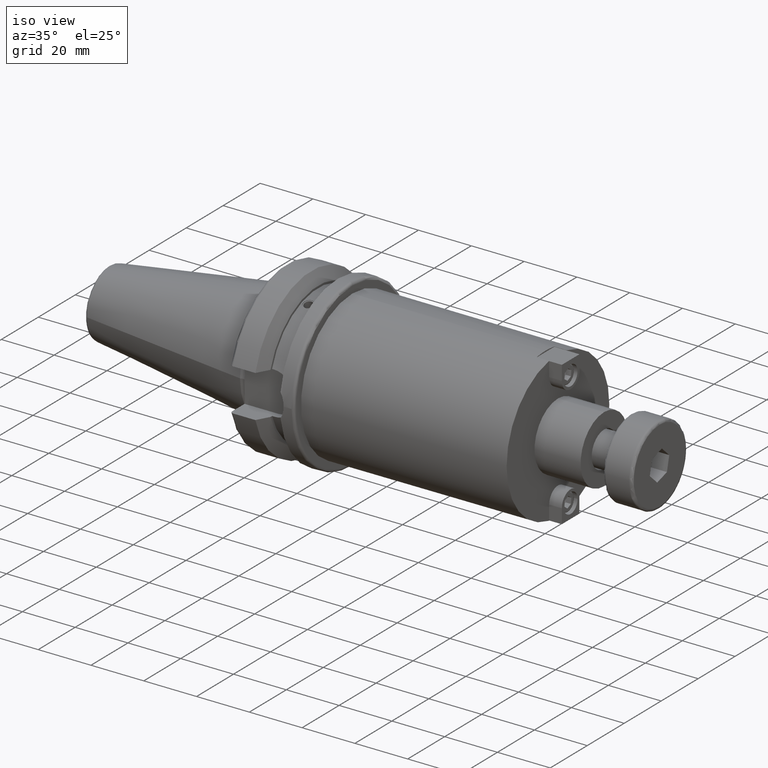
[diagram: clean part render]
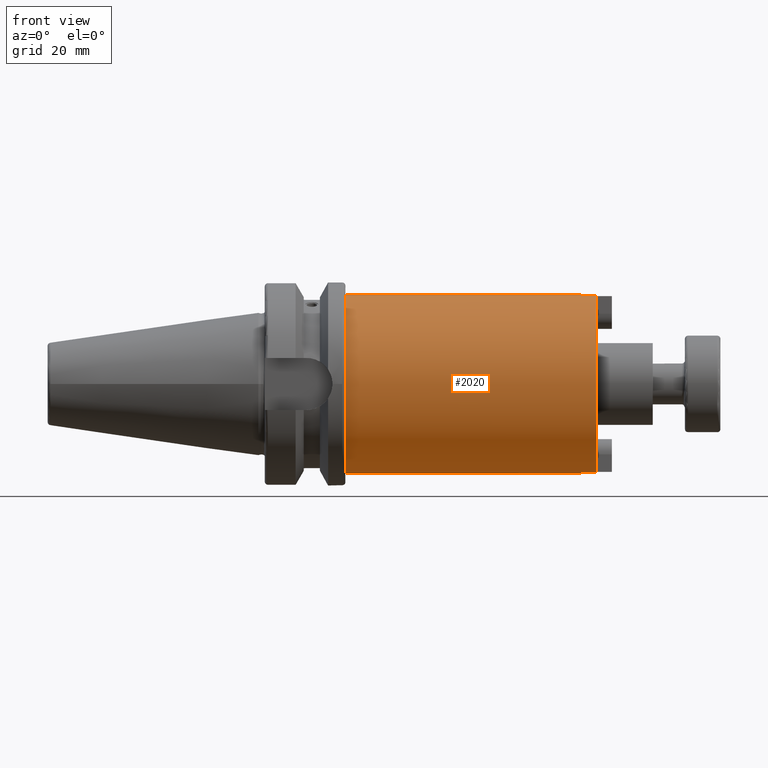
[diagram: tour spotlight — one face highlighted and labeled with its STEP entity id]
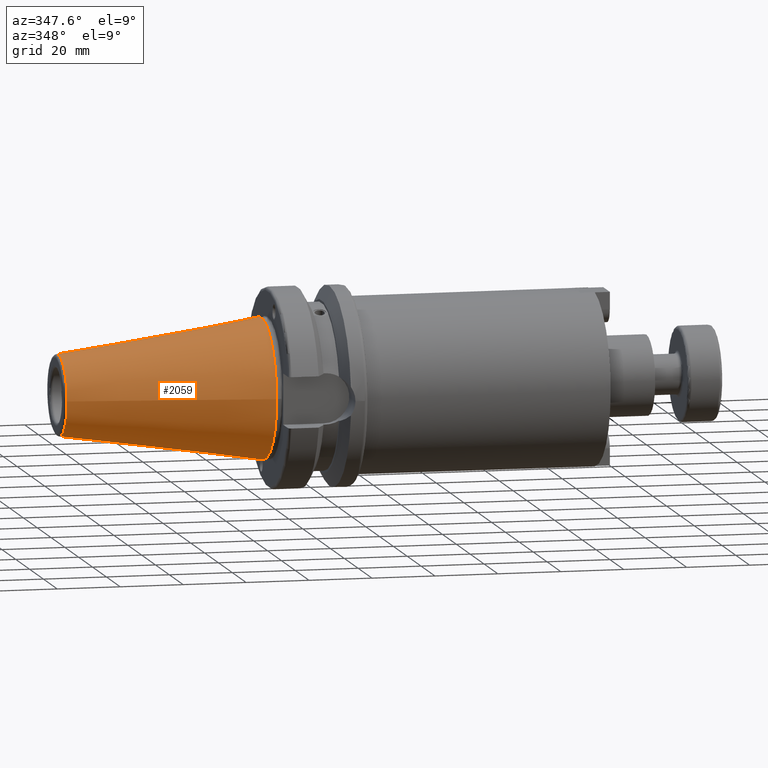
[diagram: tour spotlight — one face highlighted and labeled with its STEP entity id]
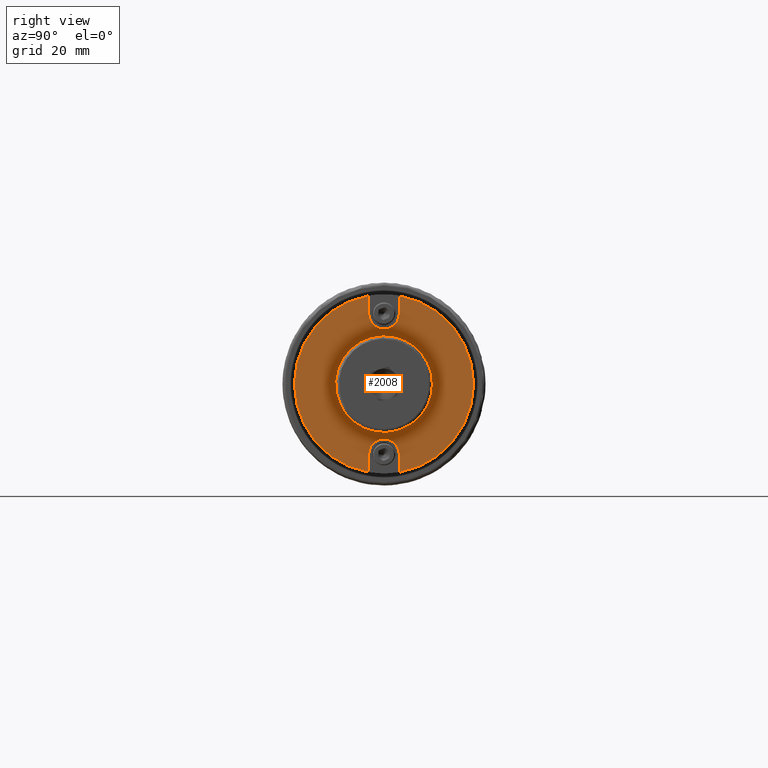
[diagram: tour spotlight — one face highlighted and labeled with its STEP entity id]
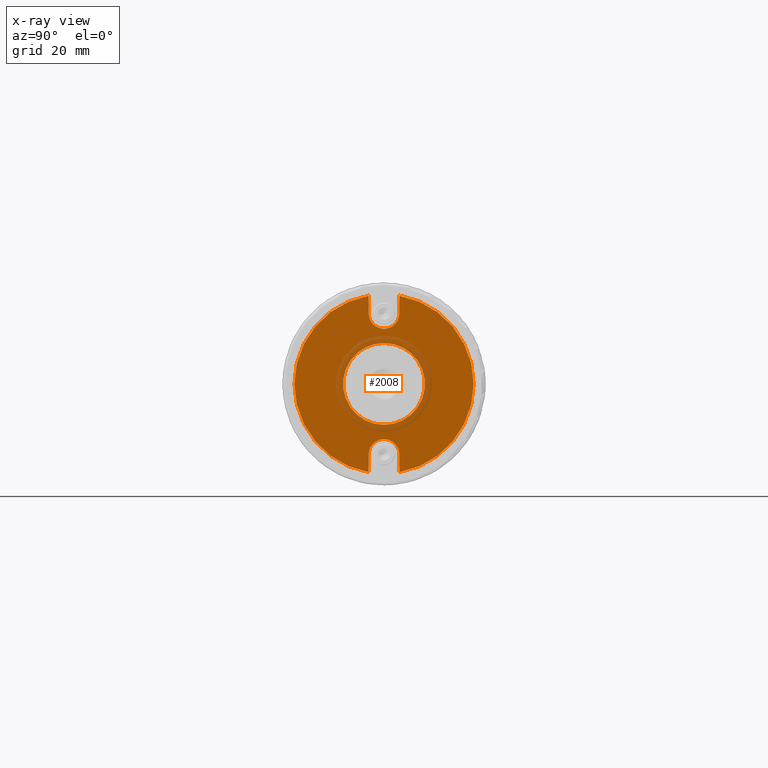
[diagram: x-ray of the same camera — body ghosted, this tour face saturated]
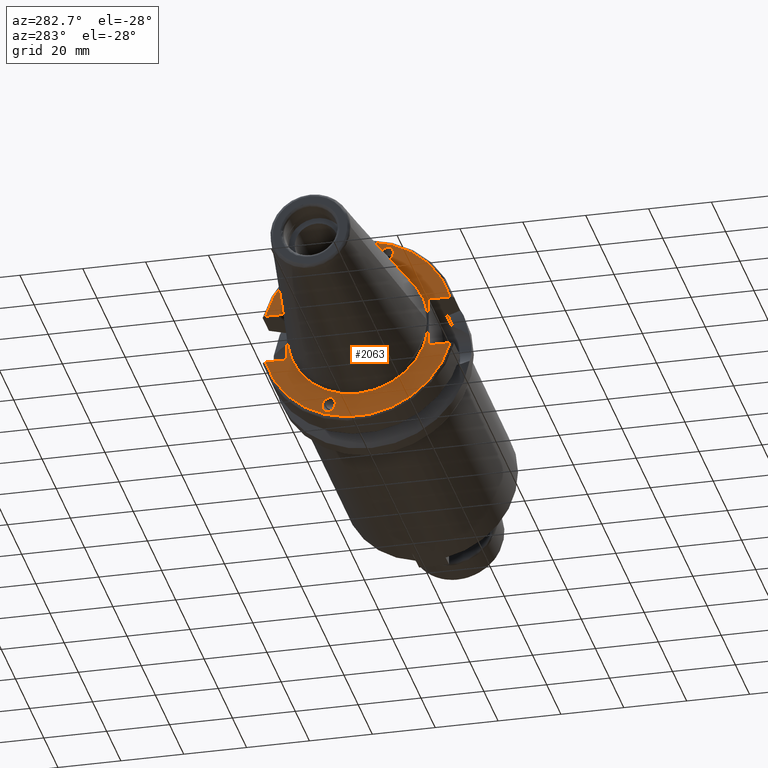
[diagram: tour spotlight — one face highlighted and labeled with its STEP entity id]
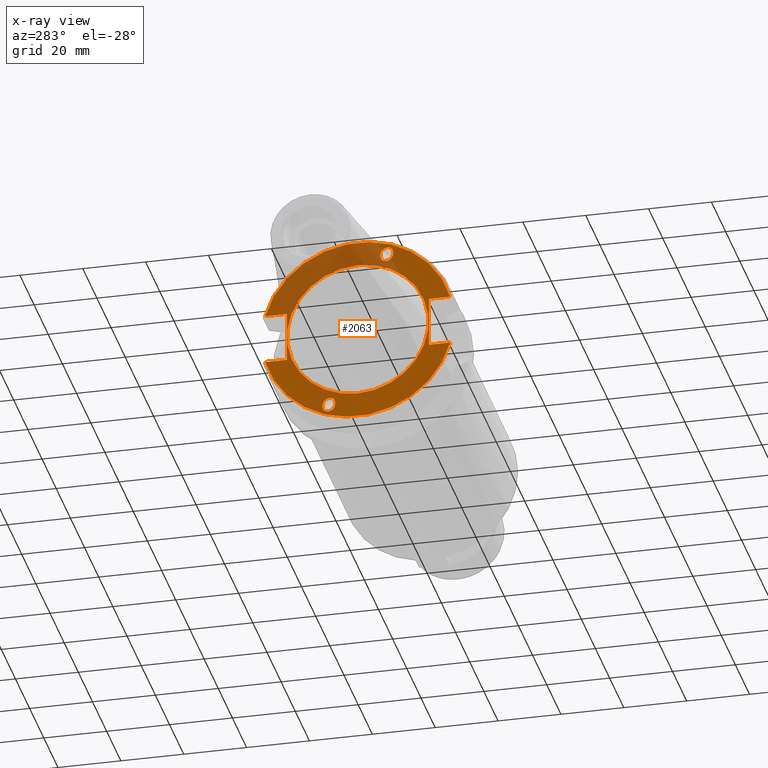
[diagram: x-ray of the same camera — body ghosted, this tour face saturated]
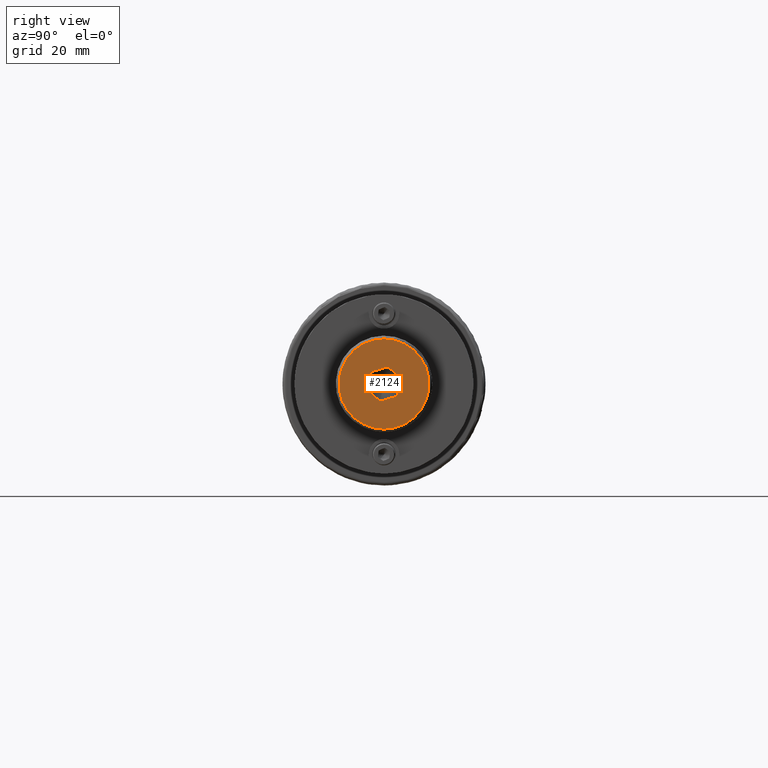
[diagram: tour spotlight — one face highlighted and labeled with its STEP entity id]
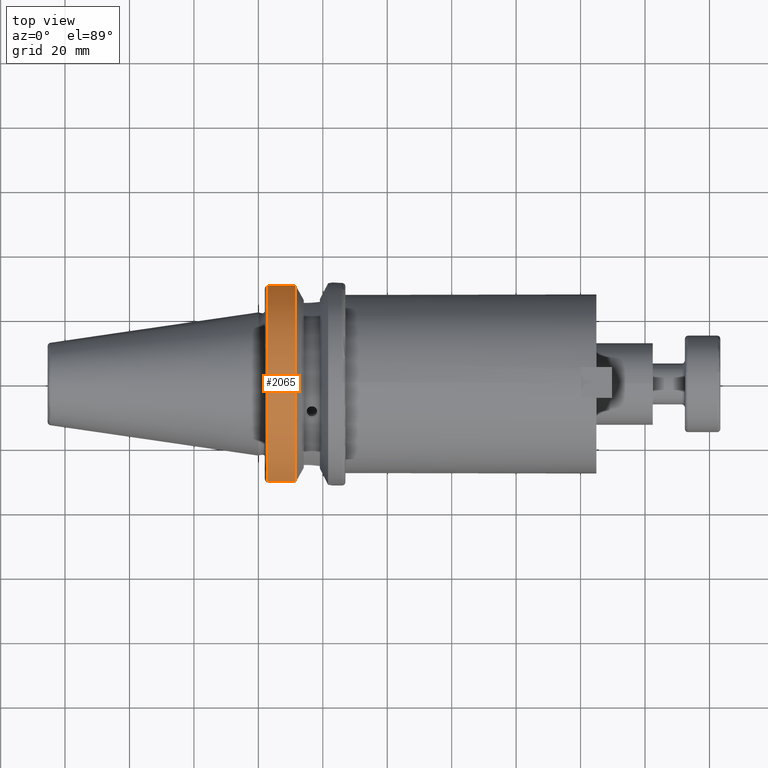
[diagram: tour spotlight — one face highlighted and labeled with its STEP entity id]
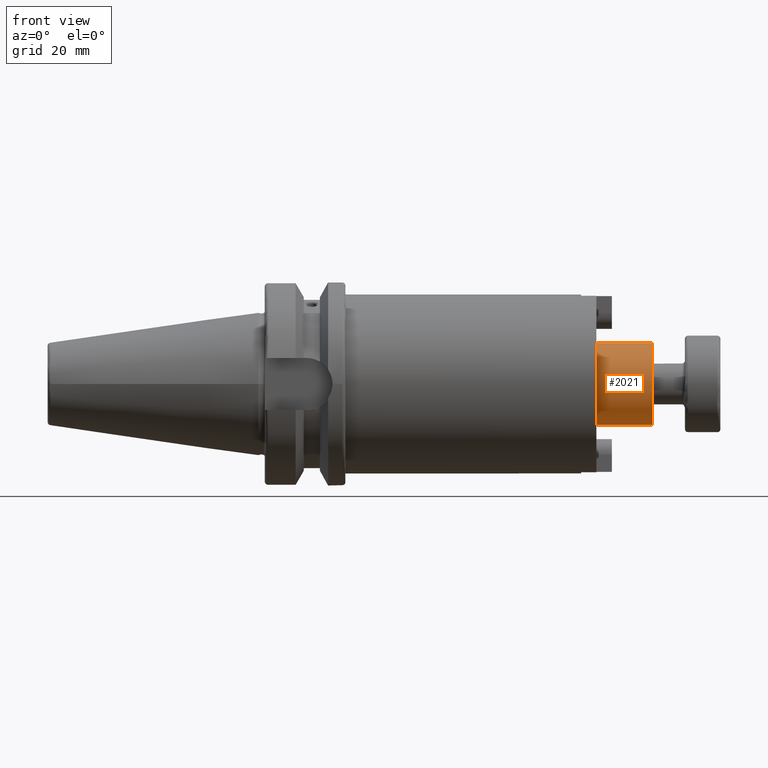
[diagram: tour spotlight — one face highlighted and labeled with its STEP entity id]
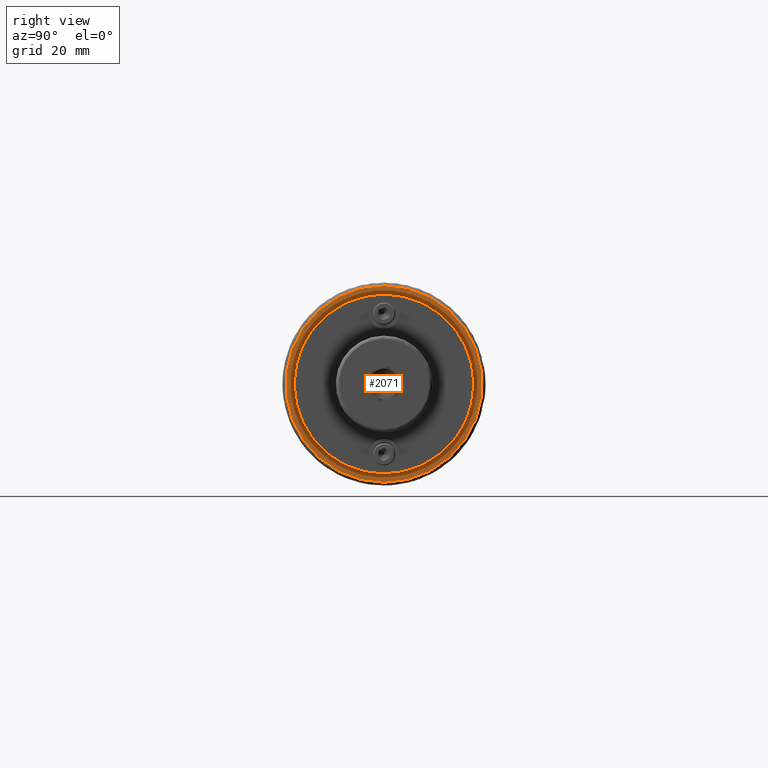
[diagram: tour spotlight — one face highlighted and labeled with its STEP entity id]
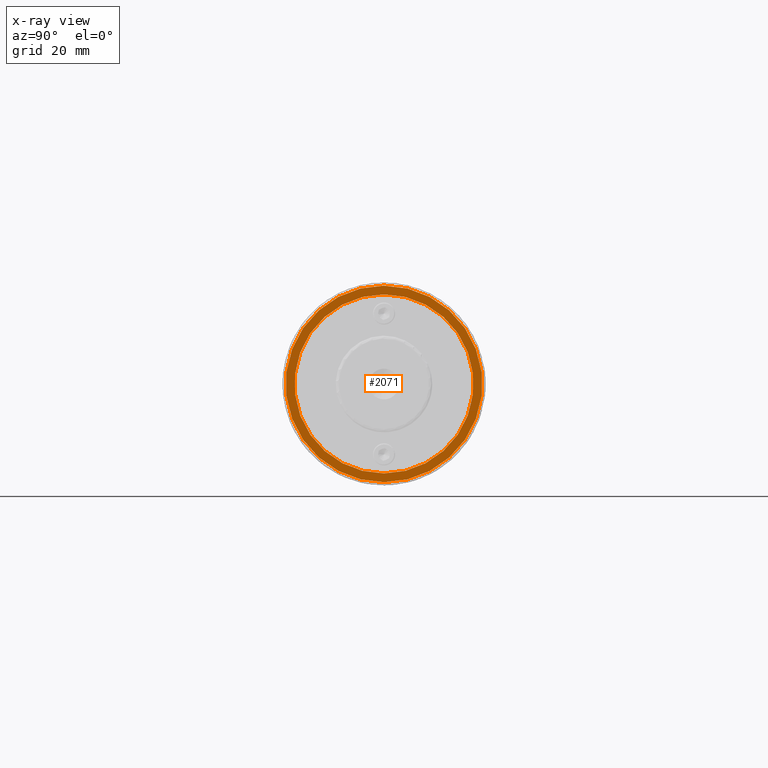
[diagram: x-ray of the same camera — body ghosted, this tour face saturated]
A machine part: a face-by-face anatomy tour. The part has 147 B-rep faces; the first image is the clean iso view, then the 8 largest visible faces are spotlighted one at a time (largest first), each with its STEP entity span.

Face 1 — front view, entity #2020. In plain terms, the highlighted cylindrical surface (bore or boss wall) has radius 27.79 mm, axis along (1, 0, 0).
Definition (entity closure, byte-faithful):
#149=CYLINDRICAL_SURFACE('',#2267,27.79);
#185=CIRCLE('',#2238,27.79);
#186=CIRCLE('',#2239,27.79);
#187=CIRCLE('',#2241,27.79);
#189=CIRCLE('',#2243,27.79);
#194=CIRCLE('',#2254,27.79);
#202=CIRCLE('',#2268,27.79);
#328=FACE_OUTER_BOUND('',#457,.T.);
#457=EDGE_LOOP('',(#1429,#1430,#1431,#1432,#1433,#1434,#1435,#1436,#1437,
#1438,#1439,#1440));
#582=LINE('',#3160,#716);
#588=LINE('',#3178,#722);
#596=LINE('',#3214,#730);
#599=LINE('',#3220,#733);
#606=LINE('',#3329,#740);
#716=VECTOR('',#2497,10.);
#722=VECTOR('',#2513,10.);
#730=VECTOR('',#2553,10.);
#733=VECTOR('',#2558,10.);
#740=VECTOR('',#2599,27.79);
#850=VERTEX_POINT('',#3158);
#851=VERTEX_POINT('',#3159);
#857=VERTEX_POINT('',#3176);
#858=VERTEX_POINT('',#3177);
#861=VERTEX_POINT('',#3188);
#862=VERTEX_POINT('',#3192);
#865=VERTEX_POINT('',#3198);
#870=VERTEX_POINT('',#3213);
#872=VERTEX_POINT('',#3219);
#885=VERTEX_POINT('',#3328);
#1048=EDGE_CURVE('',#850,#851,#582,.T.);
#1056=EDGE_CURVE('',#857,#858,#588,.T.);
#1062=EDGE_CURVE('',#858,#861,#185,.T.);
#1063=EDGE_CURVE('',#861,#850,#186,.T.);
#1064=EDGE_CURVE('',#857,#862,#187,.T.);
#1068=EDGE_CURVE('',#865,#851,#189,.T.);
#1074=EDGE_CURVE('',#870,#862,#596,.T.);
#1077=EDGE_CURVE('',#865,#872,#599,.T.);
#1081=EDGE_CURVE('',#872,#870,#194,.T.);
#1097=EDGE_CURVE('',#861,#885,#606,.T.);
#1098=EDGE_CURVE('',#885,#885,#202,.T.);
#1429=ORIENTED_EDGE('',*,*,#1048,.T.);
#1430=ORIENTED_EDGE('',*,*,#1068,.F.);
#1431=ORIENTED_EDGE('',*,*,#1077,.T.);
#1432=ORIENTED_EDGE('',*,*,#1081,.T.);
#1433=ORIENTED_EDGE('',*,*,#1074,.T.);
#1434=ORIENTED_EDGE('',*,*,#1064,.F.);
#1435=ORIENTED_EDGE('',*,*,#1056,.T.);
#1436=ORIENTED_EDGE('',*,*,#1062,.T.);
#1437=ORIENTED_EDGE('',*,*,#1097,.T.);
#1438=ORIENTED_EDGE('',*,*,#1098,.F.);
#1439=ORIENTED_EDGE('',*,*,#1097,.F.);
#1440=ORIENTED_EDGE('',*,*,#1063,.T.);
#2020=ADVANCED_FACE('',(#328),#149,.T.);
#2238=AXIS2_PLACEMENT_3D('',#3189,#2525,#2526);
#2239=AXIS2_PLACEMENT_3D('',#3190,#2527,#2528);
#2241=AXIS2_PLACEMENT_3D('',#3193,#2531,#2532);
#2243=AXIS2_PLACEMENT_3D('',#3200,#2537,#2538);
#2254=AXIS2_PLACEMENT_3D('',#3227,#2567,#2568);
#2267=AXIS2_PLACEMENT_3D('',#3327,#2597,#2598);
#2268=AXIS2_PLACEMENT_3D('',#3330,#2600,#2601);
#2497=DIRECTION('',(1.,0.,0.));
#2513=DIRECTION('',(-1.,0.,0.));
#2525=DIRECTION('center_axis',(-1.,0.,0.));
#2526=DIRECTION('ref_axis',(0.,0.,-1.));
#2527=DIRECTION('center_axis',(-1.,0.,0.));
#2528=DIRECTION('ref_axis',(0.,0.,-1.));
#2531=DIRECTION('center_axis',(1.,0.,0.));
#2532=DIRECTION('ref_axis',(0.,0.,-1.));
#2537=DIRECTION('center_axis',(1.,0.,0.));
#2538=DIRECTION('ref_axis',(0.,0.,-1.));
#2553=DIRECTION('',(1.,0.,0.));
#2558=DIRECTION('',(-1.,0.,0.));
#2567=DIRECTION('center_axis',(-1.,0.,0.));
#2568=DIRECTION('ref_axis',(0.,0.,-1.));
#2597=DIRECTION('center_axis',(1.,0.,0.));
#2598=DIRECTION('ref_axis',(0.,0.,-1.));
#2599=DIRECTION('',(-1.,0.,0.));
#2600=DIRECTION('center_axis',(-1.,0.,0.));
#2601=DIRECTION('ref_axis',(0.,0.,-1.));
#3158=CARTESIAN_POINT('',(100.18,4.76,27.3793078802222));
#3159=CARTESIAN_POINT('',(104.9,4.76,27.3793078802222));
#3160=CARTESIAN_POINT('',(65.95,4.76,27.3793078802222));
#3176=CARTESIAN_POINT('',(104.9,-4.76,27.3793078802222));
#3177=CARTESIAN_POINT('',(100.18,-4.76,27.3793078802222));
#3178=CARTESIAN_POINT('',(65.95,-4.76,27.3793078802222));
#3188=CARTESIAN_POINT('',(100.18,-3.40329345483049E-15,27.79));
#3189=CARTESIAN_POINT('Origin',(100.18,0.,0.));
#3190=CARTESIAN_POINT('Origin',(100.18,0.,0.));
#3192=CARTESIAN_POINT('',(104.9,-4.76,-27.3793078802222));
#3193=CARTESIAN_POINT('Origin',(104.9,0.,0.));
#3198=CARTESIAN_POINT('',(104.9,4.76,-27.3793078802222));
#3200=CARTESIAN_POINT('Origin',(104.9,0.,0.));
#3213=CARTESIAN_POINT('',(100.18,-4.76,-27.3793078802222));
#3214=CARTESIAN_POINT('',(65.95,-4.76,-27.3793078802222));
#3219=CARTESIAN_POINT('',(100.18,4.76,-27.3793078802222));
#3220=CARTESIAN_POINT('',(65.95,4.76,-27.3793078802222));
#3227=CARTESIAN_POINT('Origin',(100.18,0.,0.));
#3327=CARTESIAN_POINT('Origin',(65.95,0.,0.));
#3328=CARTESIAN_POINT('',(27.,-3.40329345483049E-15,27.79));
#3329=CARTESIAN_POINT('',(65.95,-3.40329345483049E-15,27.79));
#3330=CARTESIAN_POINT('Origin',(27.,0.,0.));

Face 2 — auxiliary view, entity #2059. In plain terms, the highlighted conical surface has half-angle 8.297 deg.
Definition (entity closure, byte-faithful):
#228=CIRCLE('',#2350,12.8122885780937);
#229=CIRCLE('',#2351,12.8122885780937);
#232=CIRCLE('',#2355,22.225);
#302=CONICAL_SURFACE('',#2354,17.5186442890469,0.144812498238939);
#367=FACE_OUTER_BOUND('',#502,.T.);
#502=EDGE_LOOP('',(#1648,#1649,#1650,#1651,#1652));
#653=LINE('',#3740,#787);
#787=VECTOR('',#2822,17.5186442890469);
#964=VERTEX_POINT('',#3730);
#965=VERTEX_POINT('',#3731);
#967=VERTEX_POINT('',#3738);
#1211=EDGE_CURVE('',#964,#965,#228,.T.);
#1212=EDGE_CURVE('',#965,#964,#229,.T.);
#1215=EDGE_CURVE('',#967,#967,#232,.T.);
#1216=EDGE_CURVE('',#967,#964,#653,.T.);
#1648=ORIENTED_EDGE('',*,*,#1215,.F.);
#1649=ORIENTED_EDGE('',*,*,#1216,.T.);
#1650=ORIENTED_EDGE('',*,*,#1211,.T.);
#1651=ORIENTED_EDGE('',*,*,#1212,.T.);
#1652=ORIENTED_EDGE('',*,*,#1216,.F.);
#2059=ADVANCED_FACE('',(#367),#302,.T.);
#2350=AXIS2_PLACEMENT_3D('',#3732,#2810,#2811);
#2351=AXIS2_PLACEMENT_3D('',#3733,#2812,#2813);
#2354=AXIS2_PLACEMENT_3D('',#3737,#2818,#2819);
#2355=AXIS2_PLACEMENT_3D('',#3739,#2820,#2821);
#2810=DIRECTION('center_axis',(1.,0.,0.));
#2811=DIRECTION('ref_axis',(0.,0.,-1.));
#2812=DIRECTION('center_axis',(1.,0.,0.));
#2813=DIRECTION('ref_axis',(0.,0.,-1.));
#2818=DIRECTION('center_axis',(1.,0.,0.));
#2819=DIRECTION('ref_axis',(0.,1.,0.));
#2820=DIRECTION('center_axis',(1.,0.,0.));
#2821=DIRECTION('ref_axis',(0.,0.,-1.));
#2822=DIRECTION('',(-0.989532981063282,0.144306893071729,1.76724974695192E-17));
#3730=CARTESIAN_POINT('',(-64.5443068930717,-12.8122885780937,-1.56905281969147E-15));
#3731=CARTESIAN_POINT('',(-64.5443068930717,-1.56905281969147E-15,12.8122885780937));
#3732=CARTESIAN_POINT('Origin',(-64.5443068930717,0.,0.));
#3733=CARTESIAN_POINT('Origin',(-64.5443068930717,0.,0.));
#3737=CARTESIAN_POINT('Origin',(-32.2721534465359,0.,0.));
#3738=CARTESIAN_POINT('',(4.44089209850063E-15,-22.225,-2.72177751110499E-15));
#3739=CARTESIAN_POINT('Origin',(0.,0.,0.));
#3740=CARTESIAN_POINT('',(-32.2721534465359,-17.5186442890469,-2.14541516539823E-15));

Face 3 — right view, entity #2008. An x-ray twin of the same camera follows (body ghosted, this face saturated) — the face is partly hidden behind the body. In plain terms, the highlighted planar face has unit normal (1, 0, 0).
Definition (entity closure, byte-faithful):
#117=FACE_BOUND('',#441,.T.);
#183=CIRCLE('',#2235,4.76);
#187=CIRCLE('',#2241,27.79);
#188=CIRCLE('',#2242,4.76);
#189=CIRCLE('',#2243,27.79);
#190=CIRCLE('',#2244,12.7);
#316=FACE_OUTER_BOUND('',#440,.T.);
#440=EDGE_LOOP('',(#1372,#1373,#1374,#1375,#1376,#1377,#1378,#1379));
#441=EDGE_LOOP('',(#1380));
#585=LINE('',#3165,#719);
#589=LINE('',#3180,#723);
#592=LINE('',#3195,#726);
#593=LINE('',#3199,#727);
#719=VECTOR('',#2500,10.);
#723=VECTOR('',#2514,10.);
#726=VECTOR('',#2533,10.);
#727=VECTOR('',#2536,10.);
#851=VERTEX_POINT('',#3159);
#853=VERTEX_POINT('',#3163);
#857=VERTEX_POINT('',#3176);
#859=VERTEX_POINT('',#3179);
#862=VERTEX_POINT('',#3192);
#863=VERTEX_POINT('',#3194);
#864=VERTEX_POINT('',#3196);
#865=VERTEX_POINT('',#3198);
#866=VERTEX_POINT('',#3201);
#1051=EDGE_CURVE('',#851,#853,#585,.T.);
#1057=EDGE_CURVE('',#859,#857,#589,.T.);
#1060=EDGE_CURVE('',#853,#859,#183,.T.);
#1064=EDGE_CURVE('',#857,#862,#187,.T.);
#1065=EDGE_CURVE('',#862,#863,#592,.T.);
#1066=EDGE_CURVE('',#863,#864,#188,.T.);
#1067=EDGE_CURVE('',#864,#865,#593,.T.);
#1068=EDGE_CURVE('',#865,#851,#189,.T.);
#1069=EDGE_CURVE('',#866,#866,#190,.T.);
#1372=ORIENTED_EDGE('',*,*,#1051,.T.);
#1373=ORIENTED_EDGE('',*,*,#1060,.T.);
#1374=ORIENTED_EDGE('',*,*,#1057,.T.);
#1375=ORIENTED_EDGE('',*,*,#1064,.T.);
#1376=ORIENTED_EDGE('',*,*,#1065,.T.);
#1377=ORIENTED_EDGE('',*,*,#1066,.T.);
#1378=ORIENTED_EDGE('',*,*,#1067,.T.);
#1379=ORIENTED_EDGE('',*,*,#1068,.T.);
#1380=ORIENTED_EDGE('',*,*,#1069,.F.);
#1948=PLANE('',#2240);
#2008=ADVANCED_FACE('',(#316,#117),#1948,.T.);
#2235=AXIS2_PLACEMENT_3D('',#3185,#2519,#2520);
#2240=AXIS2_PLACEMENT_3D('',#3191,#2529,#2530);
#2241=AXIS2_PLACEMENT_3D('',#3193,#2531,#2532);
#2242=AXIS2_PLACEMENT_3D('',#3197,#2534,#2535);
#2243=AXIS2_PLACEMENT_3D('',#3200,#2537,#2538);
#2244=AXIS2_PLACEMENT_3D('',#3202,#2539,#2540);
#2500=DIRECTION('',(0.,8.05011381154578E-17,-1.));
#2514=DIRECTION('',(0.,3.25430497944928E-16,1.));
#2519=DIRECTION('center_axis',(-1.,0.,0.));
#2520=DIRECTION('ref_axis',(0.,-1.,1.22464679914735E-16));
#2529=DIRECTION('center_axis',(1.,0.,0.));
#2530=DIRECTION('ref_axis',(0.,0.,-1.));
#2531=DIRECTION('center_axis',(1.,0.,0.));
#2532=DIRECTION('ref_axis',(0.,0.,-1.));
#2533=DIRECTION('',(0.,-2.02965818030193E-16,1.));
#2534=DIRECTION('center_axis',(-1.,0.,0.));
#2535=DIRECTION('ref_axis',(0.,1.,0.));
#2536=DIRECTION('',(0.,-2.02965818030193E-16,-1.));
#2537=DIRECTION('center_axis',(1.,0.,0.));
#2538=DIRECTION('ref_axis',(0.,0.,-1.));
#2539=DIRECTION('center_axis',(1.,0.,0.));
#2540=DIRECTION('ref_axis',(0.,0.,-1.));
#3159=CARTESIAN_POINT('',(104.9,4.76,27.3793078802222));
#3163=CARTESIAN_POINT('',(104.9,4.76,21.85));
#3165=CARTESIAN_POINT('',(104.9,4.76,10.045));
#3176=CARTESIAN_POINT('',(104.9,-4.76,27.3793078802222));
#3179=CARTESIAN_POINT('',(104.9,-4.76,21.85));
#3180=CARTESIAN_POINT('',(104.9,-4.76,4.57499999999999));
#3185=CARTESIAN_POINT('Origin',(104.9,2.67585325613697E-15,21.85));
#3191=CARTESIAN_POINT('Origin',(104.9,0.,-12.7));
#3192=CARTESIAN_POINT('',(104.9,-4.76,-27.3793078802222));
#3193=CARTESIAN_POINT('Origin',(104.9,0.,0.));
#3194=CARTESIAN_POINT('',(104.9,-4.76,-21.85));
#3195=CARTESIAN_POINT('',(104.9,-4.76,-22.745));
#3196=CARTESIAN_POINT('',(104.9,4.76,-21.85));
#3197=CARTESIAN_POINT('Origin',(104.9,0.,-21.85));
#3198=CARTESIAN_POINT('',(104.9,4.76,-27.3793078802222));
#3199=CARTESIAN_POINT('',(104.9,4.76,-17.275));
#3200=CARTESIAN_POINT('Origin',(104.9,0.,0.));
#3201=CARTESIAN_POINT('',(104.9,-1.55530143491714E-15,12.7));
#3202=CARTESIAN_POINT('Origin',(104.9,0.,0.));

Face 4 — auxiliary view, entity #2063. An x-ray twin of the same camera follows (body ghosted, this face saturated) — the face is partly hidden behind the body. In plain terms, the highlighted planar face has unit normal (-1, 0, 0).
Definition (entity closure, byte-faithful):
#83=ELLIPSE('',#2294,2.44154917752291,2.);
#92=ELLIPSE('',#2317,2.44154917752291,2.);
#128=FACE_BOUND('',#507,.T.);
#129=FACE_BOUND('',#508,.T.);
#130=FACE_BOUND('',#509,.T.);
#225=CIRCLE('',#2341,30.5);
#237=CIRCLE('',#2363,22.5);
#238=CIRCLE('',#2365,30.5);
#371=FACE_OUTER_BOUND('',#506,.T.);
#506=EDGE_LOOP('',(#1667,#1668,#1669,#1670,#1671,#1672,#1673,#1674));
#507=EDGE_LOOP('',(#1675));
#508=EDGE_LOOP('',(#1676));
#509=EDGE_LOOP('',(#1677));
#629=LINE('',#3574,#763);
#633=LINE('',#3582,#767);
#636=LINE('',#3602,#770);
#647=LINE('',#3702,#781);
#650=LINE('',#3723,#784);
#652=LINE('',#3726,#786);
#763=VECTOR('',#2728,10.);
#767=VECTOR('',#2734,10.);
#770=VECTOR('',#2739,10.);
#781=VECTOR('',#2794,10.);
#784=VECTOR('',#2799,10.);
#786=VECTOR('',#2803,10.);
#901=VERTEX_POINT('',#3414);
#916=VERTEX_POINT('',#3495);
#932=VERTEX_POINT('',#3562);
#933=VERTEX_POINT('',#3573);
#935=VERTEX_POINT('',#3579);
#936=VERTEX_POINT('',#3581);
#951=VERTEX_POINT('',#3662);
#958=VERTEX_POINT('',#3699);
#959=VERTEX_POINT('',#3701);
#963=VERTEX_POINT('',#3722);
#971=VERTEX_POINT('',#3752);
#1123=EDGE_CURVE('',#901,#901,#83,.T.);
#1146=EDGE_CURVE('',#916,#916,#92,.T.);
#1163=EDGE_CURVE('',#933,#932,#629,.T.);
#1167=EDGE_CURVE('',#936,#935,#633,.T.);
#1172=EDGE_CURVE('',#935,#933,#636,.T.);
#1192=EDGE_CURVE('',#936,#951,#225,.T.);
#1202=EDGE_CURVE('',#959,#958,#647,.T.);
#1207=EDGE_CURVE('',#963,#951,#650,.T.);
#1209=EDGE_CURVE('',#958,#963,#652,.T.);
#1223=EDGE_CURVE('',#971,#971,#237,.T.);
#1224=EDGE_CURVE('',#959,#932,#238,.T.);
#1667=ORIENTED_EDGE('',*,*,#1163,.T.);
#1668=ORIENTED_EDGE('',*,*,#1224,.F.);
#1669=ORIENTED_EDGE('',*,*,#1202,.T.);
#1670=ORIENTED_EDGE('',*,*,#1209,.T.);
#1671=ORIENTED_EDGE('',*,*,#1207,.T.);
#1672=ORIENTED_EDGE('',*,*,#1192,.F.);
#1673=ORIENTED_EDGE('',*,*,#1167,.T.);
#1674=ORIENTED_EDGE('',*,*,#1172,.T.);
#1675=ORIENTED_EDGE('',*,*,#1123,.T.);
#1676=ORIENTED_EDGE('',*,*,#1146,.T.);
#1677=ORIENTED_EDGE('',*,*,#1223,.T.);
#1966=PLANE('',#2364);
#2063=ADVANCED_FACE('',(#371,#128,#129,#130),#1966,.T.);
#2294=AXIS2_PLACEMENT_3D('',#3416,#2660,#2661);
#2317=AXIS2_PLACEMENT_3D('',#3497,#2713,#2714);
#2341=AXIS2_PLACEMENT_3D('',#3663,#2781,#2782);
#2363=AXIS2_PLACEMENT_3D('',#3754,#2839,#2840);
#2364=AXIS2_PLACEMENT_3D('',#3755,#2841,#2842);
#2365=AXIS2_PLACEMENT_3D('',#3756,#2843,#2844);
#2660=DIRECTION('center_axis',(1.,0.,0.));
#2661=DIRECTION('ref_axis',(5.68400912649004E-17,-0.342020143325671,0.939692620785908));
#2713=DIRECTION('center_axis',(1.,0.,0.));
#2714=DIRECTION('ref_axis',(5.68400912649004E-17,0.342020143325671,-0.939692620785908));
#2728=DIRECTION('',(0.,-1.,0.));
#2734=DIRECTION('',(0.,1.,0.));
#2739=DIRECTION('',(0.,0.,1.));
#2781=DIRECTION('center_axis',(1.,0.,0.));
#2782=DIRECTION('ref_axis',(0.,0.,-1.));
#2794=DIRECTION('',(0.,-1.,0.));
#2799=DIRECTION('',(0.,1.,0.));
#2803=DIRECTION('',(0.,0.,-1.));
#2839=DIRECTION('center_axis',(1.,0.,0.));
#2840=DIRECTION('ref_axis',(0.,0.,-1.));
#2841=DIRECTION('center_axis',(-1.,0.,0.));
#2842=DIRECTION('ref_axis',(0.,0.,1.));
#2843=DIRECTION('center_axis',(1.,0.,0.));
#2844=DIRECTION('ref_axis',(0.,0.,-1.));
#3414=CARTESIAN_POINT('',(1.99999999999999,-8.39948487015999,23.0773950158154));
#3416=CARTESIAN_POINT('Origin',(1.99999999999999,-9.23454386979305,25.3717007612195));
#3495=CARTESIAN_POINT('',(1.99999999999999,8.39948487015999,-23.0773950158154));
#3497=CARTESIAN_POINT('Origin',(1.99999999999999,9.23454386979305,-25.3717007612195));
#3562=CARTESIAN_POINT('',(1.99999999999999,-29.4184890842477,8.05));
#3573=CARTESIAN_POINT('',(1.99999999999999,-22.6,8.05));
#3574=CARTESIAN_POINT('',(1.99999999999999,3.95,8.05));
#3579=CARTESIAN_POINT('',(1.99999999999999,-22.6,-8.05));
#3581=CARTESIAN_POINT('',(1.99999999999999,-29.4184890842477,-8.05));
#3582=CARTESIAN_POINT('',(1.99999999999999,3.95,-8.05));
#3602=CARTESIAN_POINT('',(1.99999999999999,-22.6,0.));
#3662=CARTESIAN_POINT('',(1.99999999999999,29.4184890842477,-8.05));
#3663=CARTESIAN_POINT('Origin',(1.99999999999999,0.,0.));
#3699=CARTESIAN_POINT('',(1.99999999999999,22.6,8.05));
#3701=CARTESIAN_POINT('',(1.99999999999999,29.4184890842477,8.05));
#3702=CARTESIAN_POINT('',(1.99999999999999,26.55,8.05));
#3722=CARTESIAN_POINT('',(1.99999999999999,22.6,-8.05));
#3723=CARTESIAN_POINT('',(1.99999999999999,26.55,-8.05));
#3726=CARTESIAN_POINT('',(1.99999999999999,22.6,0.));
#3752=CARTESIAN_POINT('',(2.,-2.75545529808154E-15,22.5));
#3754=CARTESIAN_POINT('Origin',(2.,0.,0.));
#3755=CARTESIAN_POINT('Origin',(1.99999999999999,30.5,0.));
#3756=CARTESIAN_POINT('Origin',(1.99999999999999,0.,0.));

Face 5 — right view, entity #2124. In plain terms, the highlighted planar face has unit normal (1, 0, 0).
Definition (entity closure, byte-faithful):
#141=FACE_BOUND('',#581,.T.);
#293=CIRCLE('',#2483,14.);
#432=FACE_OUTER_BOUND('',#580,.T.);
#580=EDGE_LOOP('',(#1938));
#581=EDGE_LOOP('',(#1939,#1940,#1941,#1942,#1943,#1944));
#701=LINE('',#3973,#835);
#704=LINE('',#3978,#838);
#706=LINE('',#3982,#840);
#708=LINE('',#3986,#842);
#710=LINE('',#3990,#844);
#712=LINE('',#3993,#846);
#835=VECTOR('',#3070,10.);
#838=VECTOR('',#3075,10.);
#840=VECTOR('',#3079,10.);
#842=VECTOR('',#3083,10.);
#844=VECTOR('',#3087,10.);
#846=VECTOR('',#3091,10.);
#1030=VERTEX_POINT('',#3971);
#1031=VERTEX_POINT('',#3972);
#1032=VERTEX_POINT('',#3977);
#1033=VERTEX_POINT('',#3981);
#1034=VERTEX_POINT('',#3985);
#1035=VERTEX_POINT('',#3989);
#1047=VERTEX_POINT('',#4029);
#1317=EDGE_CURVE('',#1030,#1031,#701,.T.);
#1320=EDGE_CURVE('',#1032,#1030,#704,.T.);
#1322=EDGE_CURVE('',#1033,#1032,#706,.T.);
#1324=EDGE_CURVE('',#1034,#1033,#708,.T.);
#1326=EDGE_CURVE('',#1035,#1034,#710,.T.);
#1328=EDGE_CURVE('',#1031,#1035,#712,.T.);
#1346=EDGE_CURVE('',#1047,#1047,#293,.T.);
#1938=ORIENTED_EDGE('',*,*,#1346,.F.);
#1939=ORIENTED_EDGE('',*,*,#1317,.T.);
#1940=ORIENTED_EDGE('',*,*,#1328,.T.);
#1941=ORIENTED_EDGE('',*,*,#1326,.T.);
#1942=ORIENTED_EDGE('',*,*,#1324,.T.);
#1943=ORIENTED_EDGE('',*,*,#1322,.T.);
#1944=ORIENTED_EDGE('',*,*,#1320,.T.);
#2001=PLANE('',#2484);
#2124=ADVANCED_FACE('',(#432,#141),#2001,.T.);
#2483=AXIS2_PLACEMENT_3D('',#4031,#3139,#3140);
#2484=AXIS2_PLACEMENT_3D('',#4032,#3141,#3142);
#3070=DIRECTION('',(0.,0.866025403784439,0.499999999999999));
#3075=DIRECTION('',(0.,0.866025403784438,-0.500000000000001));
#3079=DIRECTION('',(0.,-7.06600462188186E-16,-1.));
#3083=DIRECTION('',(0.,-0.866025403784439,-0.5));
#3087=DIRECTION('',(0.,-0.866025403784438,0.500000000000001));
#3091=DIRECTION('',(0.,1.21131507803689E-15,1.));
#3139=DIRECTION('center_axis',(1.,0.,0.));
#3140=DIRECTION('ref_axis',(0.,-1.,1.83697019872103E-16));
#3141=DIRECTION('center_axis',(-1.,0.,0.));
#3142=DIRECTION('ref_axis',(0.,0.,1.));
#3971=CARTESIAN_POINT('',(0.,-8.82348337528734E-15,-5.49926131403118));
#3972=CARTESIAN_POINT('',(0.,4.76249999999999,-2.7496306570156));
#3973=CARTESIAN_POINT('',(0.,6.815625,-1.56425838558565));
#3977=CARTESIAN_POINT('',(0.,-4.7625,-2.74963065701559));
#3978=CARTESIAN_POINT('',(0.,2.05312499999999,-6.68463358546114));
#3981=CARTESIAN_POINT('',(0.,-4.7625,2.7496306570156));
#3982=CARTESIAN_POINT('',(0.,-4.7625,1.3748153285078));
#3985=CARTESIAN_POINT('',(0.,-6.68923485257748E-16,5.49926131403119));
#3986=CARTESIAN_POINT('',(0.,4.434375,8.05944891396893));
#3989=CARTESIAN_POINT('',(0.,4.7625,2.74963065701559));
#3990=CARTESIAN_POINT('',(0.,9.196875,0.189443057077837));
#3993=CARTESIAN_POINT('',(0.,4.7625,-1.37481532850779));
#4029=CARTESIAN_POINT('',(0.,-1.71450551880629E-15,14.));
#4031=CARTESIAN_POINT('Origin',(0.,0.,0.));
#4032=CARTESIAN_POINT('Origin',(0.,15.,0.));

Face 6 — top view, entity #2065. In plain terms, the highlighted cylindrical surface (partial cylindrical patch) has radius 31.5 mm, axis along (1, 0, 0).
Definition (entity closure, byte-faithful):
#169=CYLINDRICAL_SURFACE('',#2368,31.5);
#239=CIRCLE('',#2367,31.5);
#240=CIRCLE('',#2369,31.5000000000001);
#373=FACE_OUTER_BOUND('',#511,.T.);
#511=EDGE_LOOP('',(#1682,#1683,#1684,#1685));
#628=LINE('',#3561,#762);
#648=LINE('',#3715,#782);
#762=VECTOR('',#2727,10.);
#782=VECTOR('',#2795,10.);
#930=VERTEX_POINT('',#3556);
#931=VERTEX_POINT('',#3560);
#960=VERTEX_POINT('',#3703);
#961=VERTEX_POINT('',#3714);
#1161=EDGE_CURVE('',#931,#930,#628,.T.);
#1204=EDGE_CURVE('',#961,#960,#648,.T.);
#1225=EDGE_CURVE('',#960,#931,#239,.T.);
#1226=EDGE_CURVE('',#961,#930,#240,.T.);
#1682=ORIENTED_EDGE('',*,*,#1161,.T.);
#1683=ORIENTED_EDGE('',*,*,#1226,.F.);
#1684=ORIENTED_EDGE('',*,*,#1204,.T.);
#1685=ORIENTED_EDGE('',*,*,#1225,.T.);
#2065=ADVANCED_FACE('',(#373),#169,.T.);
#2367=AXIS2_PLACEMENT_3D('',#3758,#2847,#2848);
#2368=AXIS2_PLACEMENT_3D('',#3759,#2849,#2850);
#2369=AXIS2_PLACEMENT_3D('',#3760,#2851,#2852);
#2727=DIRECTION('',(1.,0.,0.));
#2795=DIRECTION('',(-1.,0.,0.));
#2847=DIRECTION('center_axis',(1.,0.,0.));
#2848=DIRECTION('ref_axis',(0.,0.,-1.));
#2849=DIRECTION('center_axis',(1.,0.,0.));
#2850=DIRECTION('ref_axis',(0.,1.,0.));
#2851=DIRECTION('center_axis',(1.,0.,0.));
#2852=DIRECTION('ref_axis',(0.,0.,-1.));
#3556=CARTESIAN_POINT('',(11.5690363073382,-30.4540227227866,8.05));
#3560=CARTESIAN_POINT('',(2.99999999999999,-30.4540227227866,8.05));
#3561=CARTESIAN_POINT('',(7.28451815366907,-30.4540227227866,8.05));
#3703=CARTESIAN_POINT('',(2.99999999999999,30.4540227227866,8.05));
#3714=CARTESIAN_POINT('',(11.5690363073382,30.4540227227866,8.05));
#3715=CARTESIAN_POINT('',(7.28451815366907,30.4540227227866,8.05));
#3758=CARTESIAN_POINT('Origin',(2.99999999999999,0.,0.));
#3759=CARTESIAN_POINT('Origin',(7.28451815366907,0.,0.));
#3760=CARTESIAN_POINT('Origin',(11.5690363073382,0.,0.));

Face 7 — front view, entity #2021. In plain terms, the highlighted cylindrical surface (bore or boss wall) has radius 12.7 mm, axis along (1, 0, 0).
Definition (entity closure, byte-faithful):
#150=CYLINDRICAL_SURFACE('',#2269,12.7);
#190=CIRCLE('',#2244,12.7);
#203=CIRCLE('',#2270,12.7);
#329=FACE_OUTER_BOUND('',#458,.T.);
#458=EDGE_LOOP('',(#1441,#1442,#1443,#1444));
#607=LINE('',#3334,#741);
#741=VECTOR('',#2606,12.7);
#866=VERTEX_POINT('',#3201);
#886=VERTEX_POINT('',#3332);
#1069=EDGE_CURVE('',#866,#866,#190,.T.);
#1099=EDGE_CURVE('',#886,#886,#203,.T.);
#1100=EDGE_CURVE('',#886,#866,#607,.T.);
#1441=ORIENTED_EDGE('',*,*,#1099,.F.);
#1442=ORIENTED_EDGE('',*,*,#1100,.T.);
#1443=ORIENTED_EDGE('',*,*,#1069,.T.);
#1444=ORIENTED_EDGE('',*,*,#1100,.F.);
#2021=ADVANCED_FACE('',(#329),#150,.T.);
#2244=AXIS2_PLACEMENT_3D('',#3202,#2539,#2540);
#2269=AXIS2_PLACEMENT_3D('',#3331,#2602,#2603);
#2270=AXIS2_PLACEMENT_3D('',#3333,#2604,#2605);
#2539=DIRECTION('center_axis',(1.,0.,0.));
#2540=DIRECTION('ref_axis',(0.,0.,-1.));
#2602=DIRECTION('center_axis',(1.,0.,0.));
#2603=DIRECTION('ref_axis',(0.,0.,-1.));
#2604=DIRECTION('center_axis',(1.,0.,0.));
#2605=DIRECTION('ref_axis',(0.,0.,-1.));
#2606=DIRECTION('',(-1.,0.,0.));
#3201=CARTESIAN_POINT('',(104.9,-1.55530143491714E-15,12.7));
#3202=CARTESIAN_POINT('Origin',(104.9,0.,0.));
#3331=CARTESIAN_POINT('Origin',(113.64,0.,0.));
#3332=CARTESIAN_POINT('',(122.38,-1.55530143491714E-15,12.7));
#3333=CARTESIAN_POINT('Origin',(122.38,0.,0.));
#3334=CARTESIAN_POINT('',(113.64,-1.55530143491714E-15,12.7));

Face 8 — right view, entity #2071. An x-ray twin of the same camera follows (body ghosted, this face saturated) — the face is partly hidden behind the body. In plain terms, the highlighted planar face has unit normal (1, 0, 0).
Definition (entity closure, byte-faithful):
#132=FACE_BOUND('',#519,.T.);
#202=CIRCLE('',#2268,27.79);
#244=CIRCLE('',#2378,30.5);
#379=FACE_OUTER_BOUND('',#518,.T.);
#518=EDGE_LOOP('',(#1711));
#519=EDGE_LOOP('',(#1712));
#885=VERTEX_POINT('',#3328);
#972=VERTEX_POINT('',#3769);
#1098=EDGE_CURVE('',#885,#885,#202,.T.);
#1230=EDGE_CURVE('',#972,#972,#244,.T.);
#1711=ORIENTED_EDGE('',*,*,#1230,.T.);
#1712=ORIENTED_EDGE('',*,*,#1098,.T.);
#1969=PLANE('',#2380);
#2071=ADVANCED_FACE('',(#379,#132),#1969,.T.);
#2268=AXIS2_PLACEMENT_3D('',#3330,#2600,#2601);
#2378=AXIS2_PLACEMENT_3D('',#3770,#2869,#2870);
#2380=AXIS2_PLACEMENT_3D('',#3772,#2873,#2874);
#2600=DIRECTION('center_axis',(-1.,0.,0.));
#2601=DIRECTION('ref_axis',(0.,0.,-1.));
#2869=DIRECTION('center_axis',(1.,0.,0.));
#2870=DIRECTION('ref_axis',(0.,0.,-1.));
#2873=DIRECTION('center_axis',(1.,0.,0.));
#2874=DIRECTION('ref_axis',(0.,0.,-1.));
#3328=CARTESIAN_POINT('',(27.,-3.40329345483049E-15,27.79));
#3330=CARTESIAN_POINT('Origin',(27.,0.,0.));
#3769=CARTESIAN_POINT('',(27.,-3.73517273739943E-15,30.5));
#3770=CARTESIAN_POINT('Origin',(27.,0.,0.));
#3772=CARTESIAN_POINT('Origin',(27.,0.,0.));